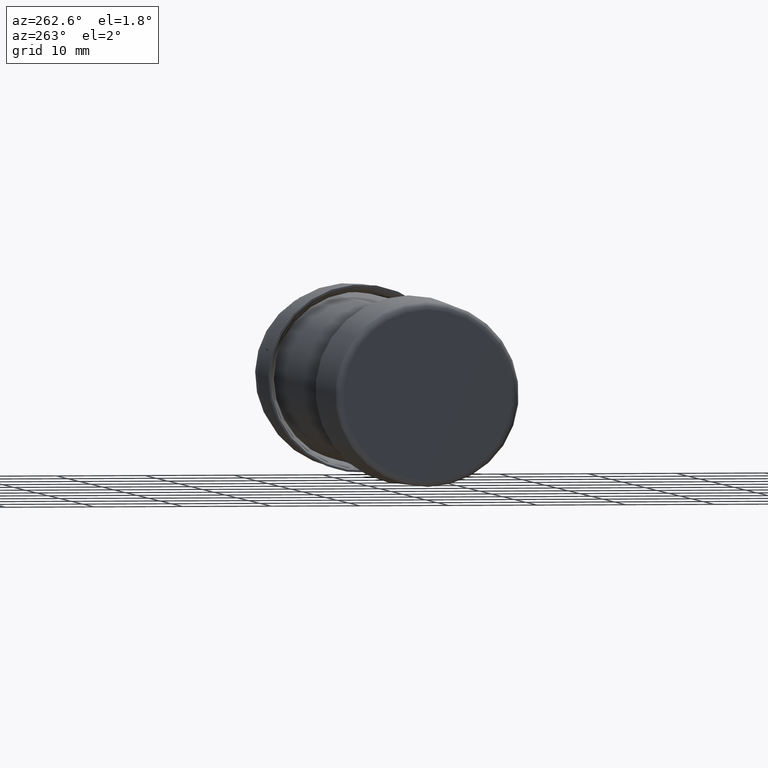
[diagram: clean part render]
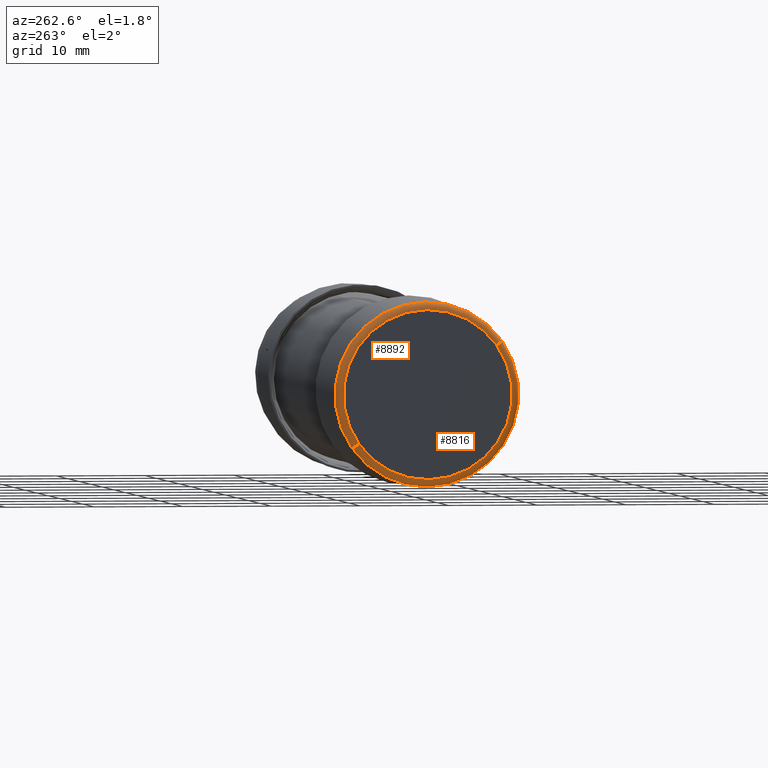
[diagram: same view with one multi-face feature highlighted, each face labeled with its STEP entity id]
A machine part, auxiliary view. The highlighted faces form ONE feature: a constant-radius fillet chain: 2 tangent blend faces with common blend radius 0.8382 mm. The faces share edges in the B-rep.
Their STEP definitions:
[1] entity #8892 (Torus):
#280 = DIRECTION ( 'NONE',  ( -1.781464061670178700E-016, 0.8159477399572706600, -0.5781256659746411000 ) ) ;
#673 = ORIENTED_EDGE ( 'NONE', *, *, #6004, .F. ) ;
#752 = DIRECTION ( 'NONE',  ( 0.0000000000000000000, 0.8159477399572706600, -0.5781256659746411000 ) ) ;
#866 = DIRECTION ( 'NONE',  ( -3.347852933412088500E-016, 0.8159477399572705500, -0.5781256659746411000 ) ) ;
#882 = DIRECTION ( 'NONE',  ( 0.0000000000000000000, -0.8159477399572707700, 0.5781256659746407700 ) ) ;
#1501 = EDGE_LOOP ( 'NONE', ( #11351, #6425, #8159, #673 ) ) ;
#1807 = DIRECTION ( 'NONE',  ( -1.000000000000000000, -1.700911416085063300E-016, 6.808368128484296700E-017 ) ) ;
#1837 = CARTESIAN_POINT ( 'NONE',  ( -1.221258279986952000, -0.3059804024839766200, 0.2167971247404903400 ) ) ;
#1897 = AXIS2_PLACEMENT_3D ( 'NONE', #12160, #5542, #882 ) ;
#2018 = CARTESIAN_POINT ( 'NONE',  ( -1.221258279986952000, -1.045731115158147400E-016, 1.537775783755735600E-017 ) ) ;
#2284 = CARTESIAN_POINT ( 'NONE',  ( -1.254258279986952200, 0.3059804024839763400, -0.2167971247404903400 ) ) ;
#2407 = CARTESIAN_POINT ( 'NONE',  ( -1.254258279986952200, -0.3059804024839766200, 0.2167971247404903400 ) ) ;
#2500 = AXIS2_PLACEMENT_3D ( 'NONE', #1837, #2759, #10339 ) ;
#2759 = DIRECTION ( 'NONE',  ( 4.278132864646593500E-017, -0.5781256659746409900, -0.8159477399572708800 ) ) ;
#3262 = CIRCLE ( 'NONE', #5507, 0.3749999999999999400 ) ;
#3602 = TOROIDAL_SURFACE ( 'NONE', #10413, 0.3750000000000000600, 0.03299999999999998100 ) ;
#4115 = VERTEX_POINT ( 'NONE', #10721 ) ;
#5366 = AXIS2_PLACEMENT_3D ( 'NONE', #9362, #1807, #866 ) ;
#5413 = DIRECTION ( 'NONE',  ( -1.000000000000000000, -1.700911416085063300E-016, 6.808368128484296700E-017 ) ) ;
#5507 = AXIS2_PLACEMENT_3D ( 'NONE', #12023, #5413, #752 ) ;
#5542 = DIRECTION ( 'NONE',  ( -4.278132864646597200E-017, 0.5781256659746411000, 0.8159477399572707700 ) ) ;
#5584 = CIRCLE ( 'NONE', #1897, 0.03299999999999998800 ) ;
#6004 = EDGE_CURVE ( 'NONE', #8031, #10676, #3262, .T. ) ;
#6425 = ORIENTED_EDGE ( 'NONE', *, *, #7494, .T. ) ;
#6993 = EDGE_CURVE ( 'NONE', #8725, #10676, #5584, .T. ) ;
#7252 = EDGE_CURVE ( 'NONE', #4115, #8031, #10187, .T. ) ;
#7494 = EDGE_CURVE ( 'NONE', #4115, #8725, #11108, .T. ) ;
#8031 = VERTEX_POINT ( 'NONE', #2407 ) ;
#8159 = ORIENTED_EDGE ( 'NONE', *, *, #6993, .T. ) ;
#8725 = VERTEX_POINT ( 'NONE', #9239 ) ;
#8892 = ADVANCED_FACE ( 'NONE', ( #12009 ), #3602, .T. ) ;
#8965 = DIRECTION ( 'NONE',  ( -1.000000000000000000, -1.700911416085063300E-016, 6.808368128484296700E-017 ) ) ;
#9239 = CARTESIAN_POINT ( 'NONE',  ( -1.221258279986952200, 0.3329066779025662800, -0.2358752717176534900 ) ) ;
#9362 = CARTESIAN_POINT ( 'NONE',  ( -1.221258279986952000, -1.061718551745966300E-016, 1.651052001973389600E-017 ) ) ;
#10187 = CIRCLE ( 'NONE', #2500, 0.03299999999999998800 ) ;
#10339 = DIRECTION ( 'NONE',  ( 0.0000000000000000000, 0.8159477399572707700, -0.5781256659746407700 ) ) ;
#10413 = AXIS2_PLACEMENT_3D ( 'NONE', #2018, #8965, #280 ) ;
#10676 = VERTEX_POINT ( 'NONE', #2284 ) ;
#10721 = CARTESIAN_POINT ( 'NONE',  ( -1.221258279986952000, -0.3329066779025665100, 0.2358752717176534100 ) ) ;
#11108 = CIRCLE ( 'NONE', #5366, 0.4079999999999998600 ) ;
#11351 = ORIENTED_EDGE ( 'NONE', *, *, #7252, .F. ) ;
#12009 = FACE_OUTER_BOUND ( 'NONE', #1501, .T. ) ;
#12023 = CARTESIAN_POINT ( 'NONE',  ( -1.254258279986952200, -1.117848628476773300E-016, 1.875728150213371200E-017 ) ) ;
#12160 = CARTESIAN_POINT ( 'NONE',  ( -1.221258279986952000, 0.3059804024839763400, -0.2167971247404903700 ) ) ;
[2] entity #8816 (Torus):
#131 = CIRCLE ( 'NONE', #4637, 0.4079999999999998600 ) ;
#266 = DIRECTION ( 'NONE',  ( -1.000000000000000000, -1.700911416085063300E-016, 6.808368128484296700E-017 ) ) ;
#882 = DIRECTION ( 'NONE',  ( 0.0000000000000000000, -0.8159477399572707700, 0.5781256659746407700 ) ) ;
#1267 = CARTESIAN_POINT ( 'NONE',  ( -1.221258279986952000, -1.045731115158147400E-016, 1.537775783755735600E-017 ) ) ;
#1273 = ORIENTED_EDGE ( 'NONE', *, *, #6993, .F. ) ;
#1837 = CARTESIAN_POINT ( 'NONE',  ( -1.221258279986952000, -0.3059804024839766200, 0.2167971247404903400 ) ) ;
#1897 = AXIS2_PLACEMENT_3D ( 'NONE', #12160, #5542, #882 ) ;
#2133 = CIRCLE ( 'NONE', #7165, 0.3749999999999999400 ) ;
#2284 = CARTESIAN_POINT ( 'NONE',  ( -1.254258279986952200, 0.3059804024839763400, -0.2167971247404903400 ) ) ;
#2407 = CARTESIAN_POINT ( 'NONE',  ( -1.254258279986952200, -0.3059804024839766200, 0.2167971247404903400 ) ) ;
#2500 = AXIS2_PLACEMENT_3D ( 'NONE', #1837, #2759, #10339 ) ;
#2759 = DIRECTION ( 'NONE',  ( 4.278132864646593500E-017, -0.5781256659746409900, -0.8159477399572708800 ) ) ;
#3225 = ORIENTED_EDGE ( 'NONE', *, *, #3897, .T. ) ;
#3643 = AXIS2_PLACEMENT_3D ( 'NONE', #1267, #266, #11926 ) ;
#3819 = ORIENTED_EDGE ( 'NONE', *, *, #7252, .T. ) ;
#3897 = EDGE_CURVE ( 'NONE', #8725, #4115, #131, .T. ) ;
#4115 = VERTEX_POINT ( 'NONE', #10721 ) ;
#4533 = DIRECTION ( 'NONE',  ( -3.347852933412088500E-016, 0.8159477399572705500, -0.5781256659746411000 ) ) ;
#4637 = AXIS2_PLACEMENT_3D ( 'NONE', #11043, #7119, #4533 ) ;
#4819 = ORIENTED_EDGE ( 'NONE', *, *, #5617, .F. ) ;
#5380 = DIRECTION ( 'NONE',  ( -1.000000000000000000, -1.700911416085063300E-016, 6.808368128484296700E-017 ) ) ;
#5542 = DIRECTION ( 'NONE',  ( -4.278132864646597200E-017, 0.5781256659746411000, 0.8159477399572707700 ) ) ;
#5584 = CIRCLE ( 'NONE', #1897, 0.03299999999999998800 ) ;
#5617 = EDGE_CURVE ( 'NONE', #10676, #8031, #2133, .T. ) ;
#5977 = TOROIDAL_SURFACE ( 'NONE', #3643, 0.3750000000000000600, 0.03299999999999998100 ) ;
#6868 = FACE_OUTER_BOUND ( 'NONE', #9422, .T. ) ;
#6993 = EDGE_CURVE ( 'NONE', #8725, #10676, #5584, .T. ) ;
#7119 = DIRECTION ( 'NONE',  ( -1.000000000000000000, -1.700911416085063300E-016, 6.808368128484296700E-017 ) ) ;
#7165 = AXIS2_PLACEMENT_3D ( 'NONE', #11988, #5380, #11076 ) ;
#7252 = EDGE_CURVE ( 'NONE', #4115, #8031, #10187, .T. ) ;
#8031 = VERTEX_POINT ( 'NONE', #2407 ) ;
#8725 = VERTEX_POINT ( 'NONE', #9239 ) ;
#8816 = ADVANCED_FACE ( 'NONE', ( #6868 ), #5977, .T. ) ;
#9239 = CARTESIAN_POINT ( 'NONE',  ( -1.221258279986952200, 0.3329066779025662800, -0.2358752717176534900 ) ) ;
#9422 = EDGE_LOOP ( 'NONE', ( #3225, #3819, #4819, #1273 ) ) ;
#10187 = CIRCLE ( 'NONE', #2500, 0.03299999999999998800 ) ;
#10339 = DIRECTION ( 'NONE',  ( 0.0000000000000000000, 0.8159477399572707700, -0.5781256659746407700 ) ) ;
#10676 = VERTEX_POINT ( 'NONE', #2284 ) ;
#10721 = CARTESIAN_POINT ( 'NONE',  ( -1.221258279986952000, -0.3329066779025665100, 0.2358752717176534100 ) ) ;
#11043 = CARTESIAN_POINT ( 'NONE',  ( -1.221258279986952000, -1.061718551745966300E-016, 1.651052001973389600E-017 ) ) ;
#11076 = DIRECTION ( 'NONE',  ( 0.0000000000000000000, 0.8159477399572706600, -0.5781256659746411000 ) ) ;
#11926 = DIRECTION ( 'NONE',  ( -1.781464061670178700E-016, 0.8159477399572706600, -0.5781256659746411000 ) ) ;
#11988 = CARTESIAN_POINT ( 'NONE',  ( -1.254258279986952200, -1.117848628476773300E-016, 1.875728150213371200E-017 ) ) ;
#12160 = CARTESIAN_POINT ( 'NONE',  ( -1.221258279986952000, 0.3059804024839763400, -0.2167971247404903700 ) ) ;